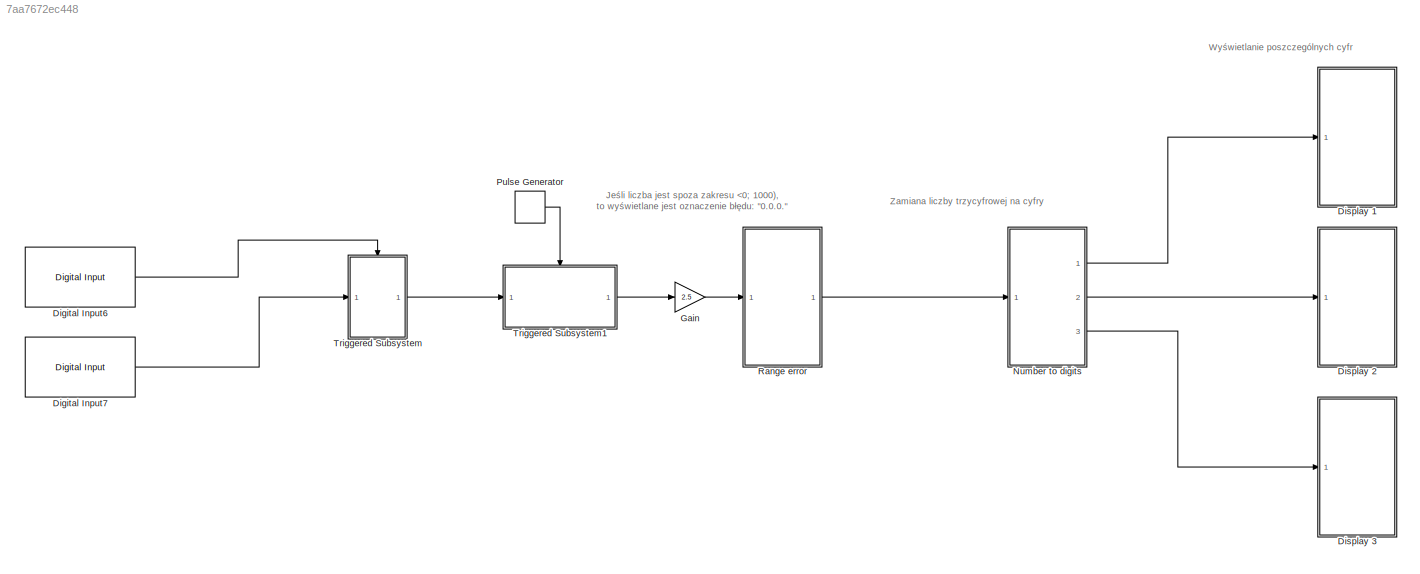
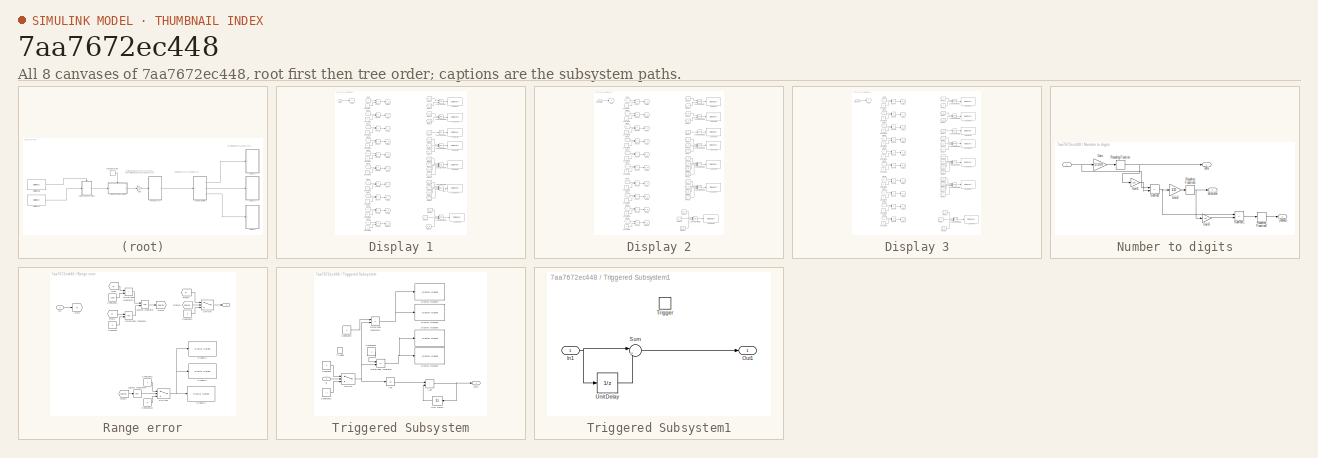
[diagram: thumbnail index - all 8 canvases of the model, root first then tree order]
MODEL slx_7aa7672ec448
KIND model
CONFIG AbsTol = auto
CONFIG EnableMultiTasking = on
CONFIG FixedStep = auto
CONFIG MaxStep = auto
CONFIG MinStep = auto
CONFIG RelTol = 1e-3
CONFIG SampleTimeConstraint = Unconstrained
CONFIG SolverName = FixedStepAuto
CONFIG StartTime = 0.0
CONFIG StopTime = Inf
BLOCK [Reference] Digital Input6  REF=c2837xDlib/Digital Input
  Ports = [0, 1]
  SourceBlock = c2837xDlib/Digital Input
  SourceProductBaseCode = TIC2000
  SourceType = F2837x GPIO Digital Input
  UserDataPersistent = on
BLOCK [Reference] Digital Input7  REF=c2837xDlib/Digital Input
  Ports = [0, 1]
  SourceBlock = c2837xDlib/Digital Input
  SourceProductBaseCode = TIC2000
  SourceType = F2837x GPIO Digital Input
  UserDataPersistent = on
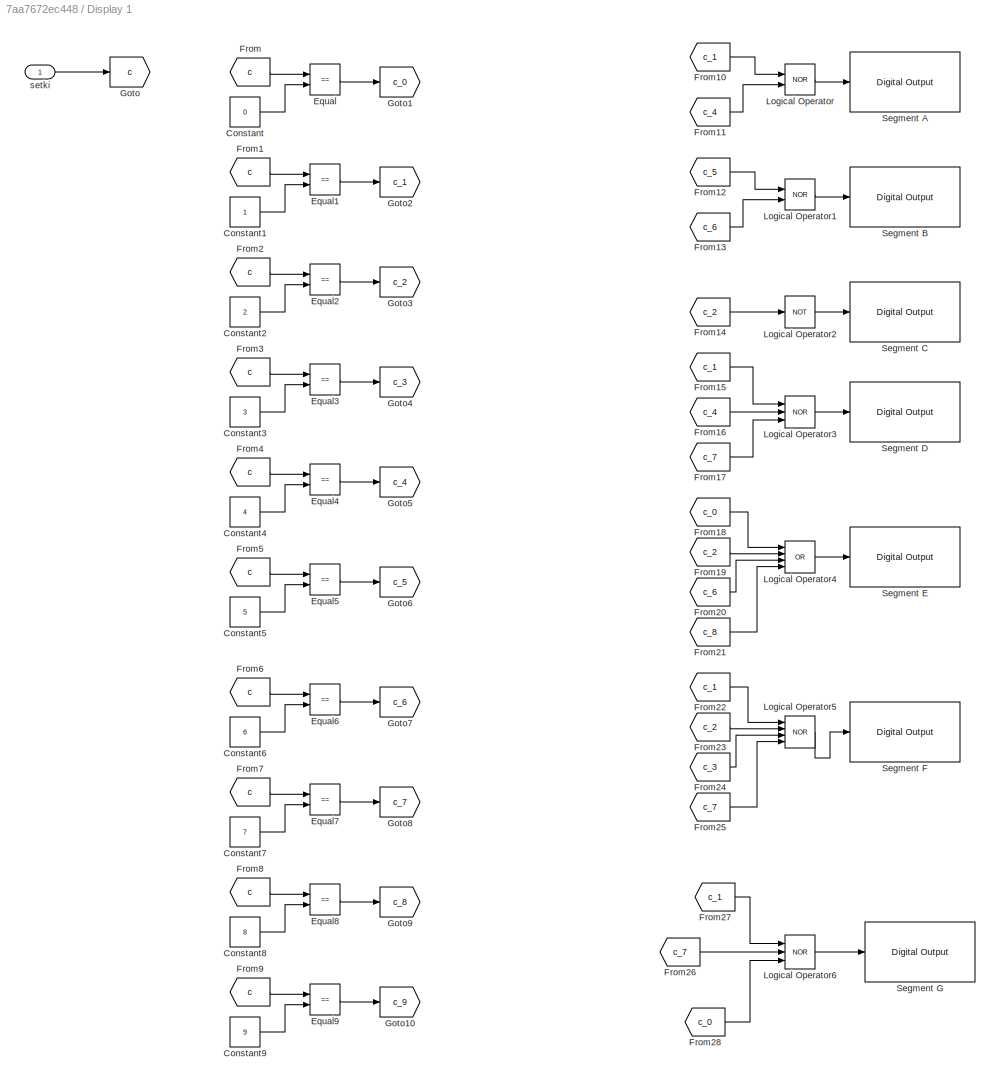
BLOCK [SubSystem] Display 1
  Ports = [1]
  RequestExecContextInheritance = off
BLOCK [Constant] Display 1/Constant
  Value = 0
BLOCK [Constant] Display 1/Constant1
BLOCK [Constant] Display 1/Constant2
  Value = 2
BLOCK [Constant] Display 1/Constant3
  Value = 3
BLOCK [Constant] Display 1/Constant4
  Value = 4
BLOCK [Constant] Display 1/Constant5
  Value = 5
BLOCK [Constant] Display 1/Constant6
  Value = 6
BLOCK [Constant] Display 1/Constant7
  Value = 7
BLOCK [Constant] Display 1/Constant8
  Value = 8
BLOCK [Constant] Display 1/Constant9
  Value = 9
BLOCK [RelationalOperator] Display 1/Equal
  InputSameDT = off
  Operator = ==
  OutDataTypeStr = boolean
  Ports = [2, 1]
  RndMeth = Simplest
BLOCK [RelationalOperator] Display 1/Equal1
  InputSameDT = off
  Operator = ==
  OutDataTypeStr = boolean
  Ports = [2, 1]
  RndMeth = Simplest
BLOCK [RelationalOperator] Display 1/Equal2
  InputSameDT = off
  Operator = ==
  OutDataTypeStr = boolean
  Ports = [2, 1]
  RndMeth = Simplest
BLOCK [RelationalOperator] Display 1/Equal3
  InputSameDT = off
  Operator = ==
  OutDataTypeStr = boolean
  Ports = [2, 1]
  RndMeth = Simplest
BLOCK [RelationalOperator] Display 1/Equal4
  InputSameDT = off
  Operator = ==
  OutDataTypeStr = boolean
  Ports = [2, 1]
  RndMeth = Simplest
BLOCK [RelationalOperator] Display 1/Equal5
  InputSameDT = off
  Operator = ==
  OutDataTypeStr = boolean
  Ports = [2, 1]
  RndMeth = Simplest
BLOCK [RelationalOperator] Display 1/Equal6
  InputSameDT = off
  Operator = ==
  OutDataTypeStr = boolean
  Ports = [2, 1]
  RndMeth = Simplest
BLOCK [RelationalOperator] Display 1/Equal7
  InputSameDT = off
  Operator = ==
  OutDataTypeStr = boolean
  Ports = [2, 1]
  RndMeth = Simplest
BLOCK [RelationalOperator] Display 1/Equal8
  InputSameDT = off
  Operator = ==
  OutDataTypeStr = boolean
  Ports = [2, 1]
  RndMeth = Simplest
BLOCK [RelationalOperator] Display 1/Equal9
  InputSameDT = off
  Operator = ==
  OutDataTypeStr = boolean
  Ports = [2, 1]
  RndMeth = Simplest
BLOCK [From] Display 1/From
  GotoTag = c
BLOCK [From] Display 1/From1
  GotoTag = c
BLOCK [From] Display 1/From10
  GotoTag = c_1
BLOCK [From] Display 1/From11
  GotoTag = c_4
BLOCK [From] Display 1/From12
  GotoTag = c_5
BLOCK [From] Display 1/From13
  GotoTag = c_6
BLOCK [From] Display 1/From14
  GotoTag = c_2
BLOCK [From] Display 1/From15
  GotoTag = c_1
BLOCK [From] Display 1/From16
  GotoTag = c_4
BLOCK [From] Display 1/From17
  GotoTag = c_7
BLOCK [From] Display 1/From18
  GotoTag = c_0
BLOCK [From] Display 1/From19
  GotoTag = c_2
BLOCK [From] Display 1/From2
  GotoTag = c
BLOCK [From] Display 1/From20
  GotoTag = c_6
BLOCK [From] Display 1/From21
  GotoTag = c_8
BLOCK [From] Display 1/From22
  GotoTag = c_1
BLOCK [From] Display 1/From23
  GotoTag = c_2
BLOCK [From] Display 1/From24
  GotoTag = c_3
BLOCK [From] Display 1/From25
  GotoTag = c_7
BLOCK [From] Display 1/From26
  GotoTag = c_7
BLOCK [From] Display 1/From27
  GotoTag = c_1
BLOCK [From] Display 1/From28
  GotoTag = c_0
BLOCK [From] Display 1/From3
  GotoTag = c
BLOCK [From] Display 1/From4
  GotoTag = c
BLOCK [From] Display 1/From5
  GotoTag = c
BLOCK [From] Display 1/From6
  GotoTag = c
BLOCK [From] Display 1/From7
  GotoTag = c
BLOCK [From] Display 1/From8
  GotoTag = c
BLOCK [From] Display 1/From9
  GotoTag = c
BLOCK [Goto] Display 1/Goto
  GotoTag = c
BLOCK [Goto] Display 1/Goto1
  GotoTag = c_0
BLOCK [Goto] Display 1/Goto10
  GotoTag = c_9
BLOCK [Goto] Display 1/Goto2
  GotoTag = c_1
BLOCK [Goto] Display 1/Goto3
  GotoTag = c_2
BLOCK [Goto] Display 1/Goto4
  GotoTag = c_3
BLOCK [Goto] Display 1/Goto5
  GotoTag = c_4
BLOCK [Goto] Display 1/Goto6
  GotoTag = c_5
BLOCK [Goto] Display 1/Goto7
  GotoTag = c_6
BLOCK [Goto] Display 1/Goto8
  GotoTag = c_7
BLOCK [Goto] Display 1/Goto9
  GotoTag = c_8
BLOCK [Logic] Display 1/Logical Operator
  AllPortsSameDT = off
  Operator = NOR
  OutDataTypeStr = boolean
  Ports = [2, 1]
BLOCK [Logic] Display 1/Logical Operator1
  AllPortsSameDT = off
  Operator = NOR
  OutDataTypeStr = boolean
  Ports = [2, 1]
BLOCK [Logic] Display 1/Logical Operator2
  AllPortsSameDT = off
  Operator = NOT
  OutDataTypeStr = boolean
  Ports = [1, 1]
BLOCK [Logic] Display 1/Logical Operator3
  AllPortsSameDT = off
  Inputs = 3
  Operator = NOR
  OutDataTypeStr = boolean
  Ports = [3, 1]
BLOCK [Logic] Display 1/Logical Operator4
  AllPortsSameDT = off
  Inputs = 4
  Operator = OR
  OutDataTypeStr = boolean
  Ports = [4, 1]
BLOCK [Logic] Display 1/Logical Operator5
  AllPortsSameDT = off
  Inputs = 4
  Operator = NOR
  OutDataTypeStr = boolean
  Ports = [4, 1]
BLOCK [Logic] Display 1/Logical Operator6
  AllPortsSameDT = off
  Inputs = 3
  Operator = NOR
  OutDataTypeStr = boolean
  Ports = [3, 1]
BLOCK [Reference] Display 1/Segment A  REF=c2837xDlib/Digital Output
  Ports = [1]
  SourceBlock = c2837xDlib/Digital Output
  SourceProductBaseCode = TIC2000
  SourceType = F2837x GPIO Digital Output
  UserDataPersistent = on
BLOCK [Reference] Display 1/Segment B  REF=c2837xDlib/Digital Output
  Ports = [1]
  SourceBlock = c2837xDlib/Digital Output
  SourceProductBaseCode = TIC2000
  SourceType = F2837x GPIO Digital Output
  UserDataPersistent = on
BLOCK [Reference] Display 1/Segment C  REF=c2837xDlib/Digital Output
  Ports = [1]
  SourceBlock = c2837xDlib/Digital Output
  SourceProductBaseCode = TIC2000
  SourceType = F2837x GPIO Digital Output
  UserDataPersistent = on
BLOCK [Reference] Display 1/Segment D  REF=c2837xDlib/Digital Output
  Ports = [1]
  SourceBlock = c2837xDlib/Digital Output
  SourceProductBaseCode = TIC2000
  SourceType = F2837x GPIO Digital Output
  UserDataPersistent = on
BLOCK [Reference] Display 1/Segment E  REF=c2837xDlib/Digital Output
  Ports = [1]
  SourceBlock = c2837xDlib/Digital Output
  SourceProductBaseCode = TIC2000
  SourceType = F2837x GPIO Digital Output
  UserDataPersistent = on
BLOCK [Reference] Display 1/Segment F  REF=c2837xDlib/Digital Output
  Ports = [1]
  SourceBlock = c2837xDlib/Digital Output
  SourceProductBaseCode = TIC2000
  SourceType = F2837x GPIO Digital Output
  UserDataPersistent = on
BLOCK [Reference] Display 1/Segment G  REF=c2837xDlib/Digital Output
  Ports = [1]
  SourceBlock = c2837xDlib/Digital Output
  SourceProductBaseCode = TIC2000
  SourceType = F2837x GPIO Digital Output
  UserDataPersistent = on
BLOCK [Inport] Display 1/setki
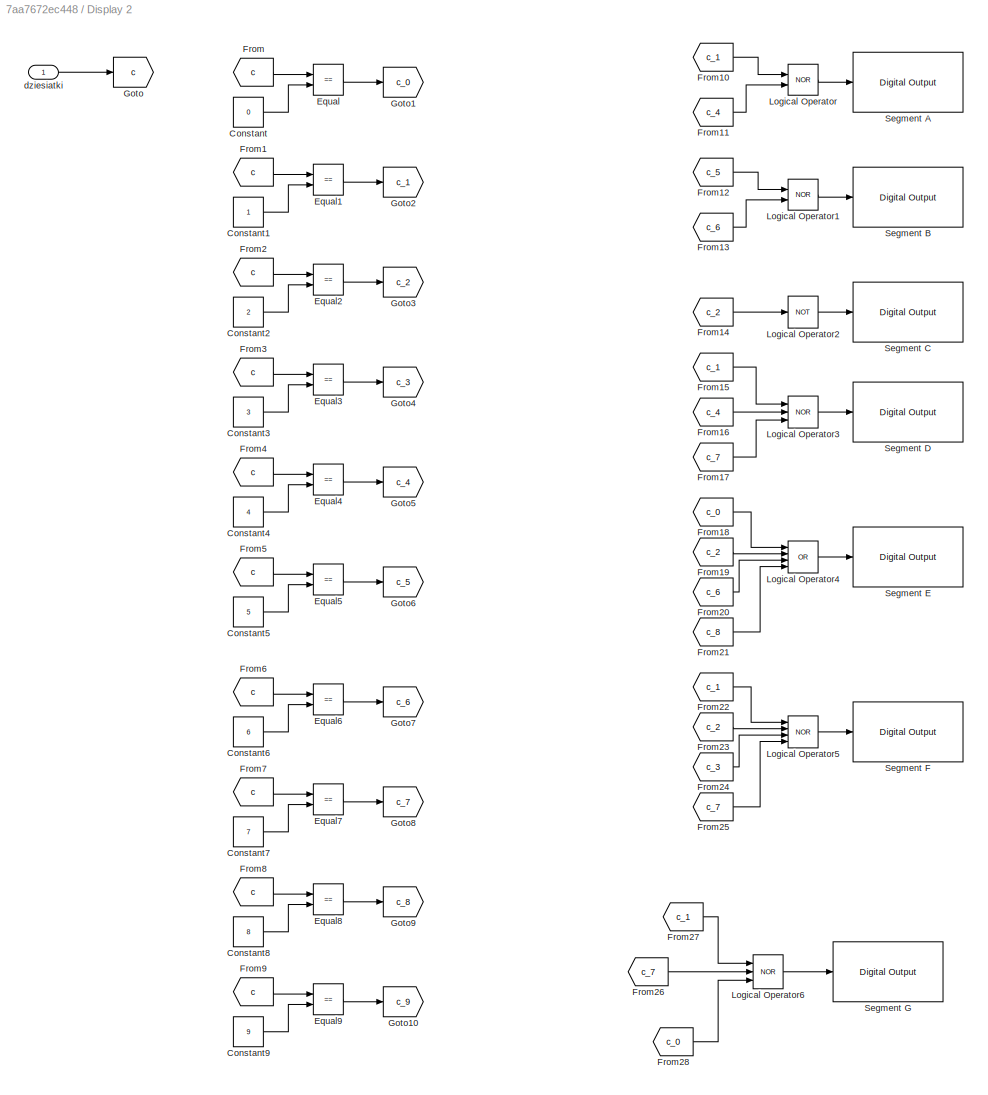
BLOCK [SubSystem] Display 2
  Ports = [1]
  RequestExecContextInheritance = off
BLOCK [Constant] Display 2/Constant
  Value = 0
BLOCK [Constant] Display 2/Constant1
BLOCK [Constant] Display 2/Constant2
  Value = 2
BLOCK [Constant] Display 2/Constant3
  Value = 3
BLOCK [Constant] Display 2/Constant4
  Value = 4
BLOCK [Constant] Display 2/Constant5
  Value = 5
BLOCK [Constant] Display 2/Constant6
  Value = 6
BLOCK [Constant] Display 2/Constant7
  Value = 7
BLOCK [Constant] Display 2/Constant8
  Value = 8
BLOCK [Constant] Display 2/Constant9
  Value = 9
BLOCK [RelationalOperator] Display 2/Equal
  InputSameDT = off
  Operator = ==
  OutDataTypeStr = boolean
  Ports = [2, 1]
  RndMeth = Simplest
BLOCK [RelationalOperator] Display 2/Equal1
  InputSameDT = off
  Operator = ==
  OutDataTypeStr = boolean
  Ports = [2, 1]
  RndMeth = Simplest
BLOCK [RelationalOperator] Display 2/Equal2
  InputSameDT = off
  Operator = ==
  OutDataTypeStr = boolean
  Ports = [2, 1]
  RndMeth = Simplest
BLOCK [RelationalOperator] Display 2/Equal3
  InputSameDT = off
  Operator = ==
  OutDataTypeStr = boolean
  Ports = [2, 1]
  RndMeth = Simplest
BLOCK [RelationalOperator] Display 2/Equal4
  InputSameDT = off
  Operator = ==
  OutDataTypeStr = boolean
  Ports = [2, 1]
  RndMeth = Simplest
BLOCK [RelationalOperator] Display 2/Equal5
  InputSameDT = off
  Operator = ==
  OutDataTypeStr = boolean
  Ports = [2, 1]
  RndMeth = Simplest
BLOCK [RelationalOperator] Display 2/Equal6
  InputSameDT = off
  Operator = ==
  OutDataTypeStr = boolean
  Ports = [2, 1]
  RndMeth = Simplest
BLOCK [RelationalOperator] Display 2/Equal7
  InputSameDT = off
  Operator = ==
  OutDataTypeStr = boolean
  Ports = [2, 1]
  RndMeth = Simplest
BLOCK [RelationalOperator] Display 2/Equal8
  InputSameDT = off
  Operator = ==
  OutDataTypeStr = boolean
  Ports = [2, 1]
  RndMeth = Simplest
BLOCK [RelationalOperator] Display 2/Equal9
  InputSameDT = off
  Operator = ==
  OutDataTypeStr = boolean
  Ports = [2, 1]
  RndMeth = Simplest
BLOCK [From] Display 2/From
  GotoTag = c
BLOCK [From] Display 2/From1
  GotoTag = c
BLOCK [From] Display 2/From10
  GotoTag = c_1
BLOCK [From] Display 2/From11
  GotoTag = c_4
BLOCK [From] Display 2/From12
  GotoTag = c_5
BLOCK [From] Display 2/From13
  GotoTag = c_6
BLOCK [From] Display 2/From14
  GotoTag = c_2
BLOCK [From] Display 2/From15
  GotoTag = c_1
BLOCK [From] Display 2/From16
  GotoTag = c_4
BLOCK [From] Display 2/From17
  GotoTag = c_7
BLOCK [From] Display 2/From18
  GotoTag = c_0
BLOCK [From] Display 2/From19
  GotoTag = c_2
BLOCK [From] Display 2/From2
  GotoTag = c
BLOCK [From] Display 2/From20
  GotoTag = c_6
BLOCK [From] Display 2/From21
  GotoTag = c_8
BLOCK [From] Display 2/From22
  GotoTag = c_1
BLOCK [From] Display 2/From23
  GotoTag = c_2
BLOCK [From] Display 2/From24
  GotoTag = c_3
BLOCK [From] Display 2/From25
  GotoTag = c_7
BLOCK [From] Display 2/From26
  GotoTag = c_7
BLOCK [From] Display 2/From27
  GotoTag = c_1
BLOCK [From] Display 2/From28
  GotoTag = c_0
BLOCK [From] Display 2/From3
  GotoTag = c
BLOCK [From] Display 2/From4
  GotoTag = c
BLOCK [From] Display 2/From5
  GotoTag = c
BLOCK [From] Display 2/From6
  GotoTag = c
BLOCK [From] Display 2/From7
  GotoTag = c
BLOCK [From] Display 2/From8
  GotoTag = c
BLOCK [From] Display 2/From9
  GotoTag = c
BLOCK [Goto] Display 2/Goto
  GotoTag = c
BLOCK [Goto] Display 2/Goto1
  GotoTag = c_0
BLOCK [Goto] Display 2/Goto10
  GotoTag = c_9
BLOCK [Goto] Display 2/Goto2
  GotoTag = c_1
BLOCK [Goto] Display 2/Goto3
  GotoTag = c_2
BLOCK [Goto] Display 2/Goto4
  GotoTag = c_3
BLOCK [Goto] Display 2/Goto5
  GotoTag = c_4
BLOCK [Goto] Display 2/Goto6
  GotoTag = c_5
BLOCK [Goto] Display 2/Goto7
  GotoTag = c_6
BLOCK [Goto] Display 2/Goto8
  GotoTag = c_7
BLOCK [Goto] Display 2/Goto9
  GotoTag = c_8
BLOCK [Logic] Display 2/Logical Operator
  AllPortsSameDT = off
  Operator = NOR
  OutDataTypeStr = boolean
  Ports = [2, 1]
BLOCK [Logic] Display 2/Logical Operator1
  AllPortsSameDT = off
  Operator = NOR
  OutDataTypeStr = boolean
  Ports = [2, 1]
BLOCK [Logic] Display 2/Logical Operator2
  AllPortsSameDT = off
  Operator = NOT
  OutDataTypeStr = boolean
  Ports = [1, 1]
BLOCK [Logic] Display 2/Logical Operator3
  AllPortsSameDT = off
  Inputs = 3
  Operator = NOR
  OutDataTypeStr = boolean
  Ports = [3, 1]
BLOCK [Logic] Display 2/Logical Operator4
  AllPortsSameDT = off
  Inputs = 4
  Operator = OR
  OutDataTypeStr = boolean
  Ports = [4, 1]
BLOCK [Logic] Display 2/Logical Operator5
  AllPortsSameDT = off
  Inputs = 4
  Operator = NOR
  OutDataTypeStr = boolean
  Ports = [4, 1]
BLOCK [Logic] Display 2/Logical Operator6
  AllPortsSameDT = off
  Inputs = 3
  Operator = NOR
  OutDataTypeStr = boolean
  Ports = [3, 1]
BLOCK [Reference] Display 2/Segment A  REF=c2837xDlib/Digital Output
  Ports = [1]
  SourceBlock = c2837xDlib/Digital Output
  SourceProductBaseCode = TIC2000
  SourceType = F2837x GPIO Digital Output
  UserDataPersistent = on
BLOCK [Reference] Display 2/Segment B  REF=c2837xDlib/Digital Output
  Ports = [1]
  SourceBlock = c2837xDlib/Digital Output
  SourceProductBaseCode = TIC2000
  SourceType = F2837x GPIO Digital Output
  UserDataPersistent = on
BLOCK [Reference] Display 2/Segment C  REF=c2837xDlib/Digital Output
  Ports = [1]
  SourceBlock = c2837xDlib/Digital Output
  SourceProductBaseCode = TIC2000
  SourceType = F2837x GPIO Digital Output
  UserDataPersistent = on
BLOCK [Reference] Display 2/Segment D  REF=c2837xDlib/Digital Output
  Ports = [1]
  SourceBlock = c2837xDlib/Digital Output
  SourceProductBaseCode = TIC2000
  SourceType = F2837x GPIO Digital Output
  UserDataPersistent = on
BLOCK [Reference] Display 2/Segment E  REF=c2837xDlib/Digital Output
  Ports = [1]
  SourceBlock = c2837xDlib/Digital Output
  SourceProductBaseCode = TIC2000
  SourceType = F2837x GPIO Digital Output
  UserDataPersistent = on
BLOCK [Reference] Display 2/Segment F  REF=c2837xDlib/Digital Output
  Ports = [1]
  SourceBlock = c2837xDlib/Digital Output
  SourceProductBaseCode = TIC2000
  SourceType = F2837x GPIO Digital Output
  UserDataPersistent = on
BLOCK [Reference] Display 2/Segment G  REF=c2837xDlib/Digital Output
  Ports = [1]
  SourceBlock = c2837xDlib/Digital Output
  SourceProductBaseCode = TIC2000
  SourceType = F2837x GPIO Digital Output
  UserDataPersistent = on
BLOCK [Inport] Display 2/dziesiatki
BLOCK [SubSystem] Display 3
  Ports = [1]
  RequestExecContextInheritance = off
BLOCK [Constant] Display 3/Constant
  Value = 0
BLOCK [Constant] Display 3/Constant1
BLOCK [Constant] Display 3/Constant2
  Value = 2
BLOCK [Constant] Display 3/Constant3
  Value = 3
BLOCK [Constant] Display 3/Constant4
  Value = 4
BLOCK [Constant] Display 3/Constant5
  Value = 5
BLOCK [Constant] Display 3/Constant6
  Value = 6
BLOCK [Constant] Display 3/Constant7
  Value = 7
BLOCK [Constant] Display 3/Constant8
  Value = 8
BLOCK [Constant] Display 3/Constant9
  Value = 9
BLOCK [RelationalOperator] Display 3/Equal
  InputSameDT = off
  Operator = ==
  OutDataTypeStr = boolean
  Ports = [2, 1]
  RndMeth = Simplest
BLOCK [RelationalOperator] Display 3/Equal1
  InputSameDT = off
  Operator = ==
  OutDataTypeStr = boolean
  Ports = [2, 1]
  RndMeth = Simplest
BLOCK [RelationalOperator] Display 3/Equal2
  InputSameDT = off
  Operator = ==
  OutDataTypeStr = boolean
  Ports = [2, 1]
  RndMeth = Simplest
BLOCK [RelationalOperator] Display 3/Equal3
  InputSameDT = off
  Operator = ==
  OutDataTypeStr = boolean
  Ports = [2, 1]
  RndMeth = Simplest
BLOCK [RelationalOperator] Display 3/Equal4
  InputSameDT = off
  Operator = ==
  OutDataTypeStr = boolean
  Ports = [2, 1]
  RndMeth = Simplest
BLOCK [RelationalOperator] Display 3/Equal5
  InputSameDT = off
  Operator = ==
  OutDataTypeStr = boolean
  Ports = [2, 1]
  RndMeth = Simplest
BLOCK [RelationalOperator] Display 3/Equal6
  InputSameDT = off
  Operator = ==
  OutDataTypeStr = boolean
  Ports = [2, 1]
  RndMeth = Simplest
BLOCK [RelationalOperator] Display 3/Equal7
  InputSameDT = off
  Operator = ==
  OutDataTypeStr = boolean
  Ports = [2, 1]
  RndMeth = Simplest
BLOCK [RelationalOperator] Display 3/Equal8
  InputSameDT = off
  Operator = ==
  OutDataTypeStr = boolean
  Ports = [2, 1]
  RndMeth = Simplest
BLOCK [RelationalOperator] Display 3/Equal9
  InputSameDT = off
  Operator = ==
  OutDataTypeStr = boolean
  Ports = [2, 1]
  RndMeth = Simplest
BLOCK [From] Display 3/From
  GotoTag = c
BLOCK [From] Display 3/From1
  GotoTag = c
BLOCK [From] Display 3/From10
  GotoTag = c_1
BLOCK [From] Display 3/From11
  GotoTag = c_4
BLOCK [From] Display 3/From12
  GotoTag = c_5
BLOCK [From] Display 3/From13
  GotoTag = c_6
BLOCK [From] Display 3/From14
  GotoTag = c_2
BLOCK [From] Display 3/From15
  GotoTag = c_1
BLOCK [From] Display 3/From16
  GotoTag = c_4
BLOCK [From] Display 3/From17
  GotoTag = c_7
BLOCK [From] Display 3/From18
  GotoTag = c_0
BLOCK [From] Display 3/From19
  GotoTag = c_2
BLOCK [From] Display 3/From2
  GotoTag = c
BLOCK [From] Display 3/From20
  GotoTag = c_6
BLOCK [From] Display 3/From21
  GotoTag = c_8
BLOCK [From] Display 3/From22
  GotoTag = c_1
BLOCK [From] Display 3/From23
  GotoTag = c_2
BLOCK [From] Display 3/From24
  GotoTag = c_3
BLOCK [From] Display 3/From25
  GotoTag = c_7
BLOCK [From] Display 3/From26
  GotoTag = c_7
BLOCK [From] Display 3/From27
  GotoTag = c_1
BLOCK [From] Display 3/From28
  GotoTag = c_0
BLOCK [From] Display 3/From3
  GotoTag = c
BLOCK [From] Display 3/From4
  GotoTag = c
BLOCK [From] Display 3/From5
  GotoTag = c
BLOCK [From] Display 3/From6
  GotoTag = c
BLOCK [From] Display 3/From7
  GotoTag = c
BLOCK [From] Display 3/From8
  GotoTag = c
BLOCK [From] Display 3/From9
  GotoTag = c
BLOCK [Goto] Display 3/Goto
  GotoTag = c
BLOCK [Goto] Display 3/Goto1
  GotoTag = c_0
BLOCK [Goto] Display 3/Goto10
  GotoTag = c_9
BLOCK [Goto] Display 3/Goto2
  GotoTag = c_1
BLOCK [Goto] Display 3/Goto3
  GotoTag = c_2
BLOCK [Goto] Display 3/Goto4
  GotoTag = c_3
BLOCK [Goto] Display 3/Goto5
  GotoTag = c_4
BLOCK [Goto] Display 3/Goto6
  GotoTag = c_5
BLOCK [Goto] Display 3/Goto7
  GotoTag = c_6
BLOCK [Goto] Display 3/Goto8
  GotoTag = c_7
BLOCK [Goto] Display 3/Goto9
  GotoTag = c_8
BLOCK [Logic] Display 3/Logical Operator
  AllPortsSameDT = off
  Operator = NOR
  OutDataTypeStr = boolean
  Ports = [2, 1]
BLOCK [Logic] Display 3/Logical Operator1
  AllPortsSameDT = off
  Operator = NOR
  OutDataTypeStr = boolean
  Ports = [2, 1]
BLOCK [Logic] Display 3/Logical Operator2
  AllPortsSameDT = off
  Operator = NOT
  OutDataTypeStr = boolean
  Ports = [1, 1]
BLOCK [Logic] Display 3/Logical Operator3
  AllPortsSameDT = off
  Inputs = 3
  Operator = NOR
  OutDataTypeStr = boolean
  Ports = [3, 1]
BLOCK [Logic] Display 3/Logical Operator4
  AllPortsSameDT = off
  Inputs = 4
  Operator = OR
  OutDataTypeStr = boolean
  Ports = [4, 1]
BLOCK [Logic] Display 3/Logical Operator5
  AllPortsSameDT = off
  Inputs = 4
  Operator = NOR
  OutDataTypeStr = boolean
  Ports = [4, 1]
BLOCK [Logic] Display 3/Logical Operator6
  AllPortsSameDT = off
  Inputs = 3
  Operator = NOR
  OutDataTypeStr = boolean
  Ports = [3, 1]
BLOCK [Reference] Display 3/Segment A  REF=c2837xDlib/Digital Output
  Ports = [1]
  SourceBlock = c2837xDlib/Digital Output
  SourceProductBaseCode = TIC2000
  SourceType = F2837x GPIO Digital Output
  UserDataPersistent = on
BLOCK [Reference] Display 3/Segment B  REF=c2837xDlib/Digital Output
  Ports = [1]
  SourceBlock = c2837xDlib/Digital Output
  SourceProductBaseCode = TIC2000
  SourceType = F2837x GPIO Digital Output
  UserDataPersistent = on
BLOCK [Reference] Display 3/Segment C  REF=c2837xDlib/Digital Output
  Ports = [1]
  SourceBlock = c2837xDlib/Digital Output
  SourceProductBaseCode = TIC2000
  SourceType = F2837x GPIO Digital Output
  UserDataPersistent = on
BLOCK [Reference] Display 3/Segment D  REF=c2837xDlib/Digital Output
  Ports = [1]
  SourceBlock = c2837xDlib/Digital Output
  SourceProductBaseCode = TIC2000
  SourceType = F2837x GPIO Digital Output
  UserDataPersistent = on
BLOCK [Reference] Display 3/Segment E  REF=c2837xDlib/Digital Output
  Ports = [1]
  SourceBlock = c2837xDlib/Digital Output
  SourceProductBaseCode = TIC2000
  SourceType = F2837x GPIO Digital Output
  UserDataPersistent = on
BLOCK [Reference] Display 3/Segment F  REF=c2837xDlib/Digital Output
  Ports = [1]
  SourceBlock = c2837xDlib/Digital Output
  SourceProductBaseCode = TIC2000
  SourceType = F2837x GPIO Digital Output
  UserDataPersistent = on
BLOCK [Reference] Display 3/Segment G  REF=c2837xDlib/Digital Output
  Ports = [1]
  SourceBlock = c2837xDlib/Digital Output
  SourceProductBaseCode = TIC2000
  SourceType = F2837x GPIO Digital Output
  UserDataPersistent = on
BLOCK [Inport] Display 3/jednosci
BLOCK [Gain] Gain
  Gain = 2.5
BLOCK [SubSystem] Number to digits
  Ports = [1, 3]
  RequestExecContextInheritance = off
BLOCK [Inport] Number to digits/ 
BLOCK [Gain] Number to digits/Gain
  Gain = 1/100
BLOCK [Gain] Number to digits/Gain1
  Gain = 100
BLOCK [Gain] Number to digits/Gain2
  Gain = 1/10
BLOCK [Gain] Number to digits/Gain3
  Gain = 10
BLOCK [Rounding] Number to digits/Rounding Function
BLOCK [Rounding] Number to digits/Rounding Function1
BLOCK [Rounding] Number to digits/Rounding Function2
BLOCK [Sum] Number to digits/Subtract
  IconShape = rectangular
  Inputs = +-
  Ports = [2, 1]
BLOCK [Sum] Number to digits/Subtract1
  IconShape = rectangular
  Inputs = +-
  Ports = [2, 1]
BLOCK [Outport] Number to digits/dziesiatki
  Port = 2
BLOCK [Outport] Number to digits/jednosci
  Port = 3
BLOCK [Outport] Number to digits/setki
BLOCK [DiscretePulseGenerator] Pulse Generator
  Period = 1
  Ports = [0, 1]
  PulseType = Time based
  PulseWidth = 50
BLOCK [SubSystem] Range error
  Ports = [1, 1]
  RequestExecContextInheritance = off
BLOCK [Outport] Range error/ 
BLOCK [Constant] Range error/Constant
  Value = 0
BLOCK [Constant] Range error/Constant1
  Value = 1000
BLOCK [Constant] Range error/Constant12
  Value = 0
BLOCK [Constant] Range error/Constant2
  Value = 0
BLOCK [Constant] Range error/Constant3
BLOCK [From] Range error/From
  GotoTag = in
BLOCK [From] Range error/From1
  GotoTag = in
BLOCK [From] Range error/From12
  GotoTag = zakres
BLOCK [From] Range error/From6
  GotoTag = in
BLOCK [From] Range error/From7
  GotoTag = zakres
BLOCK [Goto] Range error/Goto
  GotoTag = in
BLOCK [Goto] Range error/Goto1
  GotoTag = zakres
BLOCK [Inport] Range error/In1
BLOCK [Reference] Range error/Kropka 1  REF=c2837xDlib/Digital Output
  Ports = [1]
  SourceBlock = c2837xDlib/Digital Output
  SourceProductBaseCode = TIC2000
  SourceType = F2837x GPIO Digital Output
  UserDataPersistent = on
BLOCK [Reference] Range error/Kropka 2  REF=c2837xDlib/Digital Output
  Ports = [1]
  SourceBlock = c2837xDlib/Digital Output
  SourceProductBaseCode = TIC2000
  SourceType = F2837x GPIO Digital Output
  UserDataPersistent = on
BLOCK [Reference] Range error/Kropka 3  REF=c2837xDlib/Digital Output
  Ports = [1]
  SourceBlock = c2837xDlib/Digital Output
  SourceProductBaseCode = TIC2000
  SourceType = F2837x GPIO Digital Output
  UserDataPersistent = on
BLOCK [Logic] Range error/Logical Operator
  AllPortsSameDT = off
  OutDataTypeStr = boolean
  Ports = [2, 1]
BLOCK [Logic] Range error/Logical Operator3
  AllPortsSameDT = off
  Operator = NOT
  OutDataTypeStr = boolean
  Ports = [1, 1]
BLOCK [RelationalOperator] Range error/Relational Operator
  InputSameDT = off
  OutDataTypeStr = boolean
  Ports = [2, 1]
  RndMeth = Simplest
BLOCK [RelationalOperator] Range error/Relational Operator1
  InputSameDT = off
  Operator = <
  OutDataTypeStr = boolean
  Ports = [2, 1]
  RndMeth = Simplest
BLOCK [Switch] Range error/Switch
  Criteria = u2 > Threshold
  InputSameDT = off
  SaturateOnIntegerOverflow = off
BLOCK [Switch] Range error/Switch3
  Criteria = u2 > Threshold
  InputSameDT = off
  SaturateOnIntegerOverflow = off
BLOCK [SubSystem] Triggered Subsystem
  Ports = [1, 1, 0, 1]
  RequestExecContextInheritance = off
  TreatAsAtomicUnit = on
BLOCK [Abs] Triggered Subsystem/Abs
  SaturateOnIntegerOverflow = off
BLOCK [Sum] Triggered Subsystem/Add
  IconShape = rectangular
  Ports = [2, 1]
BLOCK [Inport] Triggered Subsystem/B
BLOCK [Constant] Triggered Subsystem/Constant
BLOCK [Constant] Triggered Subsystem/Constant1
  Value = -1
BLOCK [Constant] Triggered Subsystem/Constant4
BLOCK [Constant] Triggered Subsystem/Constant5
  Value = -1
BLOCK [Reference] Triggered Subsystem/Digital Output2  REF=c2837xDlib/Digital Output
  Ports = [1]
  SourceBlock = c2837xDlib/Digital Output
  SourceProductBaseCode = TIC2000
  SourceType = F2837x GPIO Digital Output
  UserDataPersistent = on
BLOCK [Reference] Triggered Subsystem/Digital Output4  REF=c2837xDlib/Digital Output
  Ports = [1]
  SourceBlock = c2837xDlib/Digital Output
  SourceProductBaseCode = TIC2000
  SourceType = F2837x GPIO Digital Output
  UserDataPersistent = on
BLOCK [Reference] Triggered Subsystem/Digital Output5  REF=c2837xDlib/Digital Output
  Ports = [1]
  SourceBlock = c2837xDlib/Digital Output
  SourceProductBaseCode = TIC2000
  SourceType = F2837x GPIO Digital Output
  UserDataPersistent = on
BLOCK [Reference] Triggered Subsystem/Digital Output6  REF=c2837xDlib/Digital Output
  Ports = [1]
  SourceBlock = c2837xDlib/Digital Output
  SourceProductBaseCode = TIC2000
  SourceType = F2837x GPIO Digital Output
  UserDataPersistent = on
BLOCK [Outport] Triggered Subsystem/Out1
BLOCK [RelationalOperator] Triggered Subsystem/Relational Operator
  InputSameDT = off
  Operator = ==
  OutDataTypeStr = boolean
  Ports = [2, 1]
  RndMeth = Simplest
BLOCK [RelationalOperator] Triggered Subsystem/Relational Operator1
  InputSameDT = off
  Operator = ==
  OutDataTypeStr = boolean
  Ports = [2, 1]
  RndMeth = Simplest
BLOCK [Switch] Triggered Subsystem/Switch
  Criteria = u2 > Threshold
  InputSameDT = off
  SaturateOnIntegerOverflow = off
BLOCK [TriggerPort] Triggered Subsystem/Trigger
  Ports = []
  StatesWhenEnabling = held
  TriggerType = falling
  VariantControl = (inherit)
BLOCK [UnitDelay] Triggered Subsystem/Unit Delay
  HasFrameUpgradeWarning = on
  NameLocation = top
  SampleTime = -1
BLOCK [SubSystem] Triggered Subsystem1
  Ports = [1, 1, 0, 1]
  RequestExecContextInheritance = off
  TreatAsAtomicUnit = on
BLOCK [Inport] Triggered Subsystem1/In1
BLOCK [Outport] Triggered Subsystem1/Out1
BLOCK [Sum] Triggered Subsystem1/Sum
  Inputs = |+-
  Ports = [2, 1]
BLOCK [TriggerPort] Triggered Subsystem1/Trigger
  Ports = []
  StatesWhenEnabling = held
  VariantControl = (inherit)
BLOCK [UnitDelay] Triggered Subsystem1/Unit Delay
  HasFrameUpgradeWarning = on
  SampleTime = -1
ANNOTATION (root): Jeśli liczba jest spoza zakresu <0; 1000), to wyświetlane jest oznaczenie błędu: "0.0.0."
ANNOTATION (root): Wyświetlanie poszczególnych cyfr
ANNOTATION (root): Zamiana liczby trzycyfrowej na cyfry
LINE Digital Input6:1 -> Triggered Subsystem:trigger
LINE Digital Input7:1 -> Triggered Subsystem:1
LINE Display 1/Constant1:1 -> Display 1/Equal1:2
LINE Display 1/Constant2:1 -> Display 1/Equal2:2
LINE Display 1/Constant3:1 -> Display 1/Equal3:2
LINE Display 1/Constant4:1 -> Display 1/Equal4:2
LINE Display 1/Constant5:1 -> Display 1/Equal5:2
LINE Display 1/Constant6:1 -> Display 1/Equal6:2
LINE Display 1/Constant7:1 -> Display 1/Equal7:2
LINE Display 1/Constant8:1 -> Display 1/Equal8:2
LINE Display 1/Constant9:1 -> Display 1/Equal9:2
LINE Display 1/Constant:1 -> Display 1/Equal:2
LINE Display 1/Equal1:1 -> Display 1/Goto2:1
LINE Display 1/Equal2:1 -> Display 1/Goto3:1
LINE Display 1/Equal3:1 -> Display 1/Goto4:1
LINE Display 1/Equal4:1 -> Display 1/Goto5:1
LINE Display 1/Equal5:1 -> Display 1/Goto6:1
LINE Display 1/Equal6:1 -> Display 1/Goto7:1
LINE Display 1/Equal7:1 -> Display 1/Goto8:1
LINE Display 1/Equal8:1 -> Display 1/Goto9:1
LINE Display 1/Equal9:1 -> Display 1/Goto10:1
LINE Display 1/Equal:1 -> Display 1/Goto1:1
LINE Display 1/From10:1 -> Display 1/Logical Operator:1
LINE Display 1/From11:1 -> Display 1/Logical Operator:2
LINE Display 1/From12:1 -> Display 1/Logical Operator1:1
LINE Display 1/From13:1 -> Display 1/Logical Operator1:2
LINE Display 1/From14:1 -> Display 1/Logical Operator2:1
LINE Display 1/From15:1 -> Display 1/Logical Operator3:1
LINE Display 1/From16:1 -> Display 1/Logical Operator3:2
LINE Display 1/From17:1 -> Display 1/Logical Operator3:3
LINE Display 1/From18:1 -> Display 1/Logical Operator4:1
LINE Display 1/From19:1 -> Display 1/Logical Operator4:2
LINE Display 1/From1:1 -> Display 1/Equal1:1
LINE Display 1/From20:1 -> Display 1/Logical Operator4:3
LINE Display 1/From21:1 -> Display 1/Logical Operator4:4
LINE Display 1/From22:1 -> Display 1/Logical Operator5:1
LINE Display 1/From23:1 -> Display 1/Logical Operator5:2
LINE Display 1/From24:1 -> Display 1/Logical Operator5:3
LINE Display 1/From25:1 -> Display 1/Logical Operator5:4
LINE Display 1/From26:1 -> Display 1/Logical Operator6:2
LINE Display 1/From27:1 -> Display 1/Logical Operator6:1
LINE Display 1/From28:1 -> Display 1/Logical Operator6:3
LINE Display 1/From2:1 -> Display 1/Equal2:1
LINE Display 1/From3:1 -> Display 1/Equal3:1
LINE Display 1/From4:1 -> Display 1/Equal4:1
LINE Display 1/From5:1 -> Display 1/Equal5:1
LINE Display 1/From6:1 -> Display 1/Equal6:1
LINE Display 1/From7:1 -> Display 1/Equal7:1
LINE Display 1/From8:1 -> Display 1/Equal8:1
LINE Display 1/From9:1 -> Display 1/Equal9:1
LINE Display 1/From:1 -> Display 1/Equal:1
LINE Display 1/Logical Operator1:1 -> Display 1/Segment B:1
LINE Display 1/Logical Operator2:1 -> Display 1/Segment C:1
LINE Display 1/Logical Operator3:1 -> Display 1/Segment D:1
LINE Display 1/Logical Operator4:1 -> Display 1/Segment E:1
LINE Display 1/Logical Operator5:1 -> Display 1/Segment F:1
LINE Display 1/Logical Operator6:1 -> Display 1/Segment G:1
LINE Display 1/Logical Operator:1 -> Display 1/Segment A:1
LINE Display 1/setki:1 -> Display 1/Goto:1
LINE Display 2/Constant1:1 -> Display 2/Equal1:2
LINE Display 2/Constant2:1 -> Display 2/Equal2:2
LINE Display 2/Constant3:1 -> Display 2/Equal3:2
LINE Display 2/Constant4:1 -> Display 2/Equal4:2
LINE Display 2/Constant5:1 -> Display 2/Equal5:2
LINE Display 2/Constant6:1 -> Display 2/Equal6:2
LINE Display 2/Constant7:1 -> Display 2/Equal7:2
LINE Display 2/Constant8:1 -> Display 2/Equal8:2
LINE Display 2/Constant9:1 -> Display 2/Equal9:2
LINE Display 2/Constant:1 -> Display 2/Equal:2
LINE Display 2/Equal1:1 -> Display 2/Goto2:1
LINE Display 2/Equal2:1 -> Display 2/Goto3:1
LINE Display 2/Equal3:1 -> Display 2/Goto4:1
LINE Display 2/Equal4:1 -> Display 2/Goto5:1
LINE Display 2/Equal5:1 -> Display 2/Goto6:1
LINE Display 2/Equal6:1 -> Display 2/Goto7:1
LINE Display 2/Equal7:1 -> Display 2/Goto8:1
LINE Display 2/Equal8:1 -> Display 2/Goto9:1
LINE Display 2/Equal9:1 -> Display 2/Goto10:1
LINE Display 2/Equal:1 -> Display 2/Goto1:1
LINE Display 2/From10:1 -> Display 2/Logical Operator:1
LINE Display 2/From11:1 -> Display 2/Logical Operator:2
LINE Display 2/From12:1 -> Display 2/Logical Operator1:1
LINE Display 2/From13:1 -> Display 2/Logical Operator1:2
LINE Display 2/From14:1 -> Display 2/Logical Operator2:1
LINE Display 2/From15:1 -> Display 2/Logical Operator3:1
LINE Display 2/From16:1 -> Display 2/Logical Operator3:2
LINE Display 2/From17:1 -> Display 2/Logical Operator3:3
LINE Display 2/From18:1 -> Display 2/Logical Operator4:1
LINE Display 2/From19:1 -> Display 2/Logical Operator4:2
LINE Display 2/From1:1 -> Display 2/Equal1:1
LINE Display 2/From20:1 -> Display 2/Logical Operator4:3
LINE Display 2/From21:1 -> Display 2/Logical Operator4:4
LINE Display 2/From22:1 -> Display 2/Logical Operator5:1
LINE Display 2/From23:1 -> Display 2/Logical Operator5:2
LINE Display 2/From24:1 -> Display 2/Logical Operator5:3
LINE Display 2/From25:1 -> Display 2/Logical Operator5:4
LINE Display 2/From26:1 -> Display 2/Logical Operator6:2
LINE Display 2/From27:1 -> Display 2/Logical Operator6:1
LINE Display 2/From28:1 -> Display 2/Logical Operator6:3
LINE Display 2/From2:1 -> Display 2/Equal2:1
LINE Display 2/From3:1 -> Display 2/Equal3:1
LINE Display 2/From4:1 -> Display 2/Equal4:1
LINE Display 2/From5:1 -> Display 2/Equal5:1
LINE Display 2/From6:1 -> Display 2/Equal6:1
LINE Display 2/From7:1 -> Display 2/Equal7:1
LINE Display 2/From8:1 -> Display 2/Equal8:1
LINE Display 2/From9:1 -> Display 2/Equal9:1
LINE Display 2/From:1 -> Display 2/Equal:1
LINE Display 2/Logical Operator1:1 -> Display 2/Segment B:1
LINE Display 2/Logical Operator2:1 -> Display 2/Segment C:1
LINE Display 2/Logical Operator3:1 -> Display 2/Segment D:1
LINE Display 2/Logical Operator4:1 -> Display 2/Segment E:1
LINE Display 2/Logical Operator5:1 -> Display 2/Segment F:1
LINE Display 2/Logical Operator6:1 -> Display 2/Segment G:1
LINE Display 2/Logical Operator:1 -> Display 2/Segment A:1
LINE Display 2/dziesiatki:1 -> Display 2/Goto:1
LINE Display 3/Constant1:1 -> Display 3/Equal1:2
LINE Display 3/Constant2:1 -> Display 3/Equal2:2
LINE Display 3/Constant3:1 -> Display 3/Equal3:2
LINE Display 3/Constant4:1 -> Display 3/Equal4:2
LINE Display 3/Constant5:1 -> Display 3/Equal5:2
LINE Display 3/Constant6:1 -> Display 3/Equal6:2
LINE Display 3/Constant7:1 -> Display 3/Equal7:2
LINE Display 3/Constant8:1 -> Display 3/Equal8:2
LINE Display 3/Constant9:1 -> Display 3/Equal9:2
LINE Display 3/Constant:1 -> Display 3/Equal:2
LINE Display 3/Equal1:1 -> Display 3/Goto2:1
LINE Display 3/Equal2:1 -> Display 3/Goto3:1
LINE Display 3/Equal3:1 -> Display 3/Goto4:1
LINE Display 3/Equal4:1 -> Display 3/Goto5:1
LINE Display 3/Equal5:1 -> Display 3/Goto6:1
LINE Display 3/Equal6:1 -> Display 3/Goto7:1
LINE Display 3/Equal7:1 -> Display 3/Goto8:1
LINE Display 3/Equal8:1 -> Display 3/Goto9:1
LINE Display 3/Equal9:1 -> Display 3/Goto10:1
LINE Display 3/Equal:1 -> Display 3/Goto1:1
LINE Display 3/From10:1 -> Display 3/Logical Operator:1
LINE Display 3/From11:1 -> Display 3/Logical Operator:2
LINE Display 3/From12:1 -> Display 3/Logical Operator1:1
LINE Display 3/From13:1 -> Display 3/Logical Operator1:2
LINE Display 3/From14:1 -> Display 3/Logical Operator2:1
LINE Display 3/From15:1 -> Display 3/Logical Operator3:1
LINE Display 3/From16:1 -> Display 3/Logical Operator3:2
LINE Display 3/From17:1 -> Display 3/Logical Operator3:3
LINE Display 3/From18:1 -> Display 3/Logical Operator4:1
LINE Display 3/From19:1 -> Display 3/Logical Operator4:2
LINE Display 3/From1:1 -> Display 3/Equal1:1
LINE Display 3/From20:1 -> Display 3/Logical Operator4:3
LINE Display 3/From21:1 -> Display 3/Logical Operator4:4
LINE Display 3/From22:1 -> Display 3/Logical Operator5:1
LINE Display 3/From23:1 -> Display 3/Logical Operator5:2
LINE Display 3/From24:1 -> Display 3/Logical Operator5:3
LINE Display 3/From25:1 -> Display 3/Logical Operator5:4
LINE Display 3/From26:1 -> Display 3/Logical Operator6:2
LINE Display 3/From27:1 -> Display 3/Logical Operator6:1
LINE Display 3/From28:1 -> Display 3/Logical Operator6:3
LINE Display 3/From2:1 -> Display 3/Equal2:1
LINE Display 3/From3:1 -> Display 3/Equal3:1
LINE Display 3/From4:1 -> Display 3/Equal4:1
LINE Display 3/From5:1 -> Display 3/Equal5:1
LINE Display 3/From6:1 -> Display 3/Equal6:1
LINE Display 3/From7:1 -> Display 3/Equal7:1
LINE Display 3/From8:1 -> Display 3/Equal8:1
LINE Display 3/From9:1 -> Display 3/Equal9:1
LINE Display 3/From:1 -> Display 3/Equal:1
LINE Display 3/Logical Operator1:1 -> Display 3/Segment B:1
LINE Display 3/Logical Operator2:1 -> Display 3/Segment C:1
LINE Display 3/Logical Operator3:1 -> Display 3/Segment D:1
LINE Display 3/Logical Operator4:1 -> Display 3/Segment E:1
LINE Display 3/Logical Operator5:1 -> Display 3/Segment F:1
LINE Display 3/Logical Operator6:1 -> Display 3/Segment G:1
LINE Display 3/Logical Operator:1 -> Display 3/Segment A:1
LINE Display 3/jednosci:1 -> Display 3/Goto:1
LINE Gain:1 -> Range error:1
NET Number to digits/ :1 -> Number to digits/Gain:1, Number to digits/Subtract:1
LINE Number to digits/Gain1:1 -> Number to digits/Subtract:2
LINE Number to digits/Gain2:1 -> Number to digits/Rounding Function1:1
LINE Number to digits/Gain3:1 -> Number to digits/Subtract1:2
LINE Number to digits/Gain:1 -> Number to digits/Rounding Function:1
NET Number to digits/Rounding Function1:1 -> Number to digits/Gain3:1, Number to digits/dziesiatki:1
LINE Number to digits/Rounding Function2:1 -> Number to digits/jednosci:1
NET Number to digits/Rounding Function:1 -> Number to digits/Gain1:1, Number to digits/setki:1
LINE Number to digits/Subtract1:1 -> Number to digits/Rounding Function2:1
NET Number to digits/Subtract:1 -> Number to digits/Gain2:1, Number to digits/Subtract1:1
LINE Number to digits:1 -> Display 1:1
LINE Number to digits:2 -> Display 2:1
LINE Number to digits:3 -> Display 3:1
LINE Pulse Generator:1 -> Triggered Subsystem1:trigger
LINE Range error/Constant12:1 -> Range error/Switch3:3
LINE Range error/Constant1:1 -> Range error/Relational Operator1:2
LINE Range error/Constant2:1 -> Range error/Switch:3
LINE Range error/Constant3:1 -> Range error/Switch3:1
LINE Range error/Constant:1 -> Range error/Relational Operator:2
LINE Range error/From12:1 -> Range error/Switch:2
LINE Range error/From1:1 -> Range error/Relational Operator:1
LINE Range error/From6:1 -> Range error/Switch:1
LINE Range error/From7:1 -> Range error/Logical Operator3:1
LINE Range error/From:1 -> Range error/Relational Operator1:1
LINE Range error/In1:1 -> Range error/Goto:1
LINE Range error/Logical Operator3:1 -> Range error/Switch3:2
LINE Range error/Logical Operator:1 -> Range error/Goto1:1
LINE Range error/Relational Operator1:1 -> Range error/Logical Operator:1
LINE Range error/Relational Operator:1 -> Range error/Logical Operator:2
NET Range error/Switch3:1 -> Range error/Kropka 1:1, Range error/Kropka 2:1, Range error/Kropka 3:1
LINE Range error/Switch:1 -> Range error/ :1
LINE Range error:1 -> Number to digits:1
LINE Triggered Subsystem/Abs:1 -> Triggered Subsystem/Add:1
NET Triggered Subsystem/Add:1 -> Triggered Subsystem/Out1:1, Triggered Subsystem/Unit Delay:1
LINE Triggered Subsystem/B:1 -> Triggered Subsystem/Switch:2
LINE Triggered Subsystem/Constant1:1 -> Triggered Subsystem/Switch:3
LINE Triggered Subsystem/Constant4:1 -> Triggered Subsystem/Relational Operator1:1
LINE Triggered Subsystem/Constant5:1 -> Triggered Subsystem/Relational Operator:1
LINE Triggered Subsystem/Constant:1 -> Triggered Subsystem/Switch:1
NET Triggered Subsystem/Relational Operator1:1 -> Triggered Subsystem/Digital Output4:1, Triggered Subsystem/Digital Output6:1
NET Triggered Subsystem/Relational Operator:1 -> Triggered Subsystem/Digital Output2:1, Triggered Subsystem/Digital Output5:1
NET Triggered Subsystem/Switch:1 -> Triggered Subsystem/Abs:1, Triggered Subsystem/Relational Operator1:2, Triggered Subsystem/Relational Operator:2
LINE Triggered Subsystem/Unit Delay:1 -> Triggered Subsystem/Add:2
NET Triggered Subsystem1/In1:1 -> Triggered Subsystem1/Sum:1, Triggered Subsystem1/Unit Delay:1
LINE Triggered Subsystem1/Sum:1 -> Triggered Subsystem1/Out1:1
LINE Triggered Subsystem1/Unit Delay:1 -> Triggered Subsystem1/Sum:2
LINE Triggered Subsystem1:1 -> Gain:1
LINE Triggered Subsystem:1 -> Triggered Subsystem1:1
note: NET lines group one-source signal fan-out (src -> all destinations, sorted); 1:1 wires keep LINE
